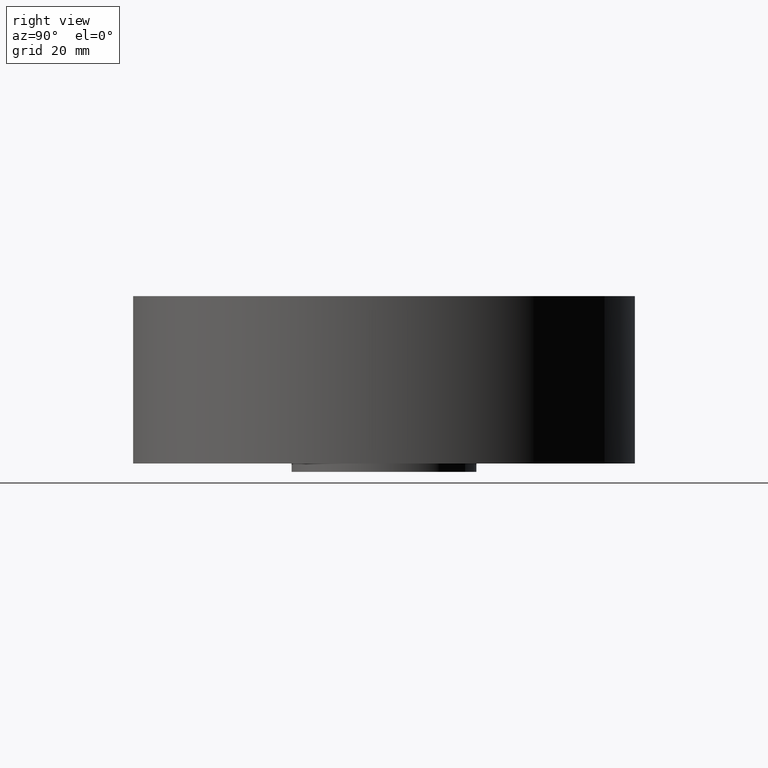
[diagram: clean part render]
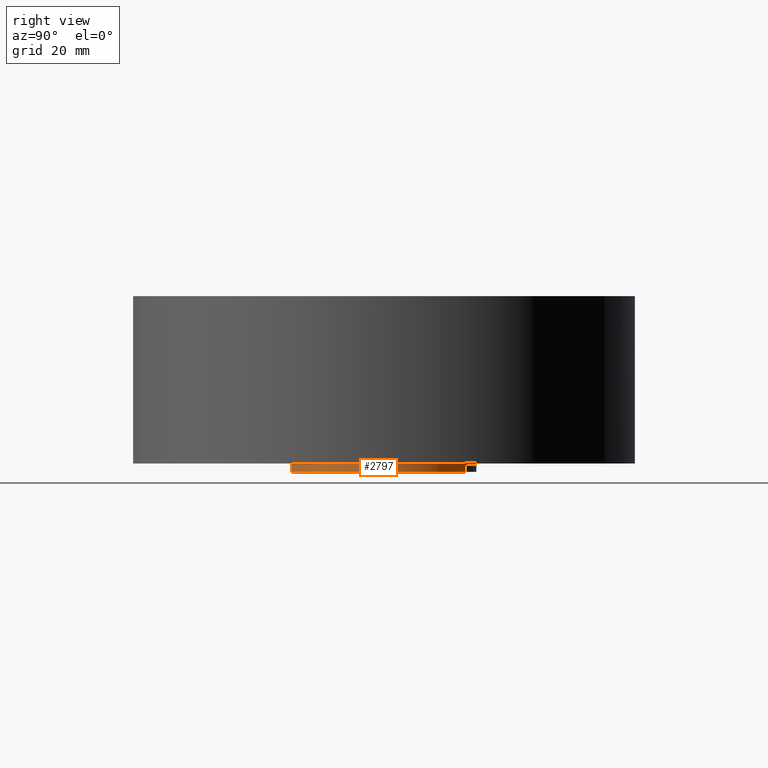
[diagram: same view with one face highlighted and labeled with its STEP entity id]
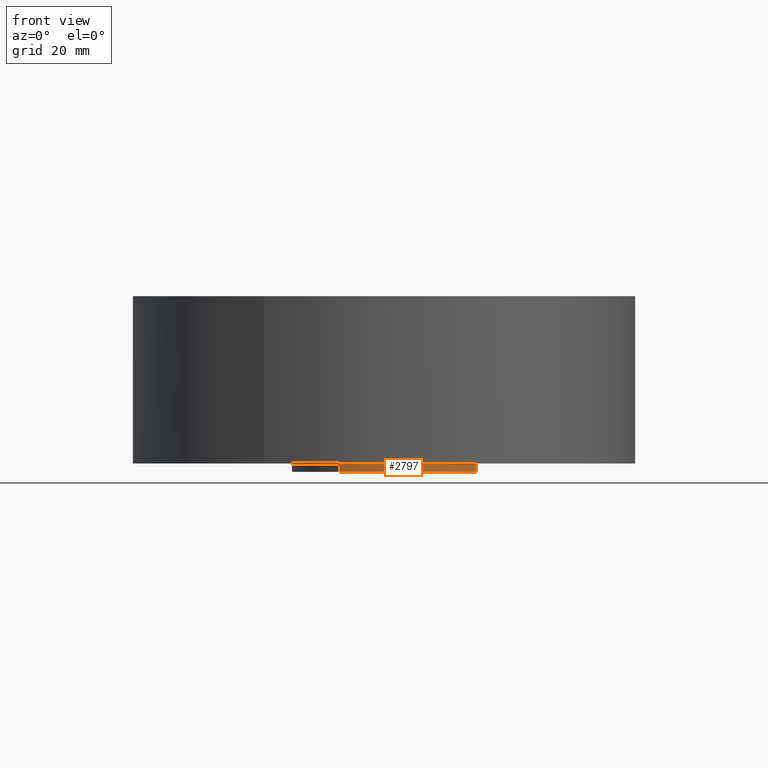
[diagram: same view with one face highlighted and labeled with its STEP entity id]
A machine part, right view. The second image highlights one B-rep face of the part: STEP entity #2797.
A second angle (front view) of the same face is appended — the face is thin or edge-on in the first view.
In plain terms, the highlighted cylindrical surface (partial cylindrical patch) has radius 17.526 mm, axis along (0, 0, -1).
Its self-contained STEP definition (entity closure, byte-faithful):
#2627=AXIS2_PLACEMENT_3D('Circle Axis2P3D',#2625,#2626,$) ;
#2770=AXIS2_PLACEMENT_3D('Cylinder Axis2P3D',#2767,#2768,#2769) ;
#2774=AXIS2_PLACEMENT_3D('Circle Axis2P3D',#2772,#2773,$) ;
#2625=CARTESIAN_POINT('Axis2P3D Location',(0.,0.,0.)) ;
#2629=CARTESIAN_POINT('Vertex',(0.330803621638,0.605531967707,-2.73447056774E-014)) ;
#2631=CARTESIAN_POINT('Vertex',(-0.330803621638,-0.605531967707,-2.73447056774E-014)) ;
#2767=CARTESIAN_POINT('Axis2P3D Location',(0.,0.,0.593750000002)) ;
#2772=CARTESIAN_POINT('Axis2P3D Location',(0.,0.,-0.0625000000003)) ;
#2776=CARTESIAN_POINT('Vertex',(0.330803621638,0.605531967707,-0.0625000000003)) ;
#2778=CARTESIAN_POINT('Vertex',(-0.330803621638,-0.605531967707,-0.0625000000003)) ;
#2781=CARTESIAN_POINT('Line Origine',(0.330803621638,0.605531967707,-0.0312500000002)) ;
#2786=CARTESIAN_POINT('Line Origine',(-0.330803621638,-0.605531967707,-0.0312500000002)) ;
#2626=DIRECTION('Axis2P3D Direction',(0.,0.,-0.0393700787402)) ;
#2768=DIRECTION('Axis2P3D Direction',(0.,0.,-0.0393700787402)) ;
#2769=DIRECTION('Axis2P3D XDirection',(-0.0188750212049,-0.0345504945626,0.)) ;
#2773=DIRECTION('Axis2P3D Direction',(0.,0.,-0.0393700787402)) ;
#2782=DIRECTION('Vector Direction',(0.,0.,-0.0393700787402)) ;
#2787=DIRECTION('Vector Direction',(0.,0.,-0.0393700787402)) ;
#2783=VECTOR('Line Direction',#2782,0.0393700787402) ;
#2788=VECTOR('Line Direction',#2787,0.0393700787402) ;
#2792=ORIENTED_EDGE('',*,*,#2780,.F.) ;
#2793=ORIENTED_EDGE('',*,*,#2785,.T.) ;
#2794=ORIENTED_EDGE('',*,*,#2633,.T.) ;
#2795=ORIENTED_EDGE('',*,*,#2790,.F.) ;
#2797=ADVANCED_FACE('PartBody',(#2796),#2771,.T.) ;
#2628=CIRCLE('generated circle',#2627,0.690000000003) ;
#2775=CIRCLE('generated circle',#2774,0.690000000003) ;
#2771=CYLINDRICAL_SURFACE('generated cylinder',#2770,0.690000000003) ;
#2633=EDGE_CURVE('',#2630,#2632,#2628,.T.) ;
#2780=EDGE_CURVE('',#2777,#2779,#2775,.T.) ;
#2785=EDGE_CURVE('',#2777,#2630,#2784,.F.) ;
#2790=EDGE_CURVE('',#2779,#2632,#2789,.F.) ;
#2791=EDGE_LOOP('',(#2792,#2793,#2794,#2795)) ;
#2796=FACE_OUTER_BOUND('',#2791,.T.) ;
#2784=LINE('Line',#2781,#2783) ;
#2789=LINE('Line',#2786,#2788) ;
#2630=VERTEX_POINT('',#2629) ;
#2632=VERTEX_POINT('',#2631) ;
#2777=VERTEX_POINT('',#2776) ;
#2779=VERTEX_POINT('',#2778) ;